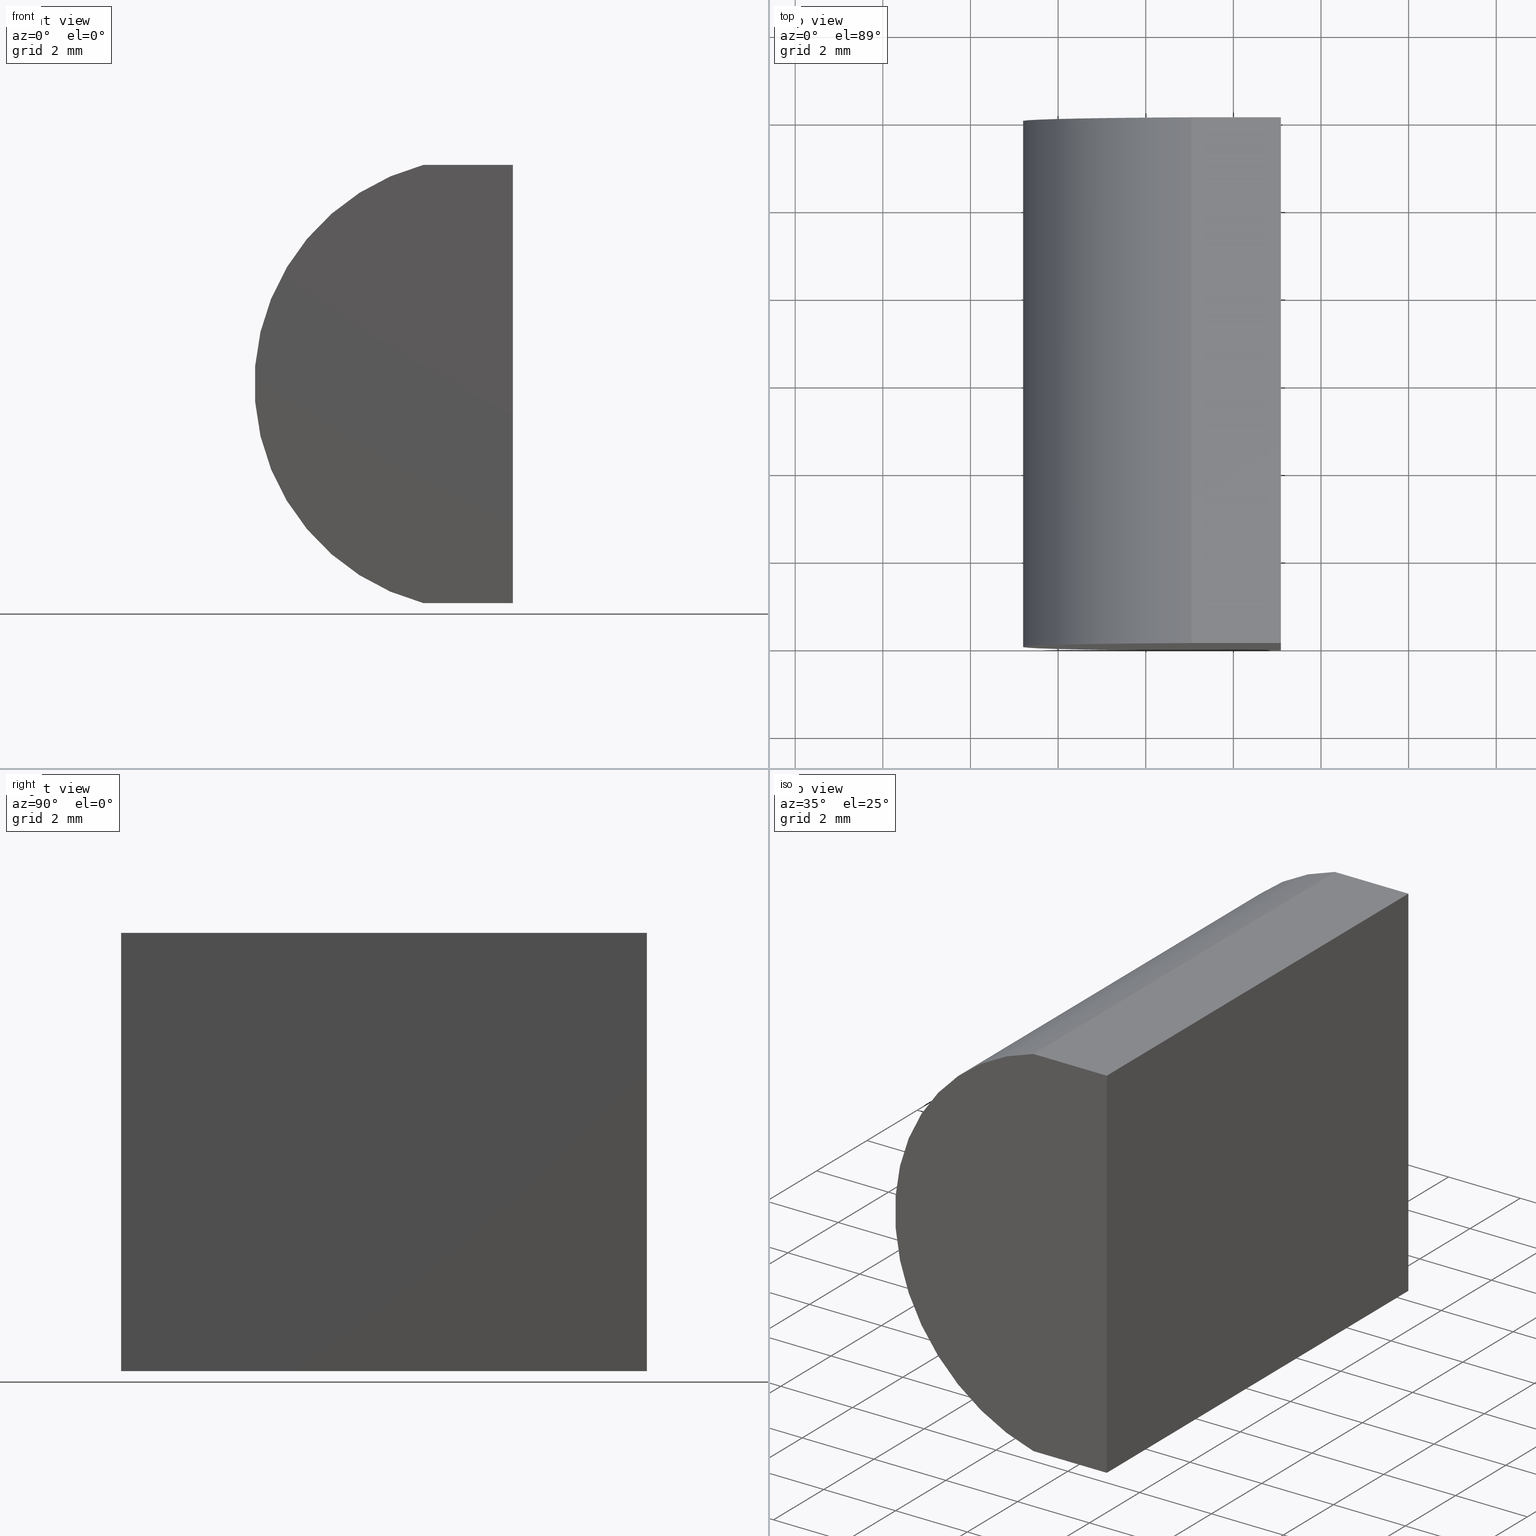
[diagram: canonical four-view strip — front | top / right | iso, engineering-drawing reading convention]
A machine part, canonical four-view strip (front | top / right | iso — engineering-drawing reading convention). The complete STEP part file that produces these views, byte-faithful:
ISO-10303-21;
HEADER;
FILE_DESCRIPTION (( 'STEP AP214' ),
    '1' );
FILE_NAME ('155011.STEP',
    '2019-06-17T01:31:40',
    ( 'user' ),
    ( '΢���й�' ),
    'SwSTEP 2.0',
    'SolidWorks 2016',
    '' );
FILE_SCHEMA (( 'AUTOMOTIVE_DESIGN' ));
ENDSEC;

DATA;
#1 = SURFACE_SIDE_STYLE ('',( #177 ) ) ;
#2 = ORIENTED_EDGE ( 'NONE', *, *, #134, .F. ) ;
#3 = APPLICATION_CONTEXT ( 'automotive_design' ) ;
#4 = APPLICATION_PROTOCOL_DEFINITION ( 'draft international standard', 'automotive_design', 1998, #3 ) ;
#5 = EDGE_CURVE ( 'NONE', #199, #42, #48, .T. ) ;
#6 = FILL_AREA_STYLE_COLOUR ( '', #141 ) ;
#7 = PLANE ( 'NONE',  #161 ) ;
#8 = CARTESIAN_POINT ( 'NONE',  ( 3.040327914802600800, 0.0000000000000000000, -5.000000000000000000 ) ) ;
#9 = SHAPE_DEFINITION_REPRESENTATION ( #155, #105 ) ;
#10 = VECTOR ( 'NONE', #74, 1000.000000000000000 ) ;
#11 = CIRCLE ( 'NONE', #96, 5.169999999999999000 ) ;
#12 = SURFACE_SIDE_STYLE ('',( #19 ) ) ;
#13 = SURFACE_STYLE_USAGE ( .BOTH. , #12 ) ;
#14 =( NAMED_UNIT ( * ) PLANE_ANGLE_UNIT ( ) SI_UNIT ( $, .RADIAN. ) );
#15 = DIRECTION ( 'NONE',  ( -0.0000000000000000000, -1.000000000000000000, -0.0000000000000000000 ) ) ;
#16 =( NAMED_UNIT ( * ) SI_UNIT ( $, .STERADIAN. ) SOLID_ANGLE_UNIT ( ) );
#17 = UNCERTAINTY_MEASURE_WITH_UNIT (LENGTH_MEASURE( 1.000000000000000100E-005 ), #153, 'distance_accuracy_value', 'NONE');
#18 = DIRECTION ( 'NONE',  ( 8.483268030131251300E-016, -0.0000000000000000000, 1.000000000000000000 ) ) ;
#19 = SURFACE_STYLE_FILL_AREA ( #127 ) ;
#20 = DIRECTION ( 'NONE',  ( 1.000000000000000000, 0.0000000000000000000, 0.0000000000000000000 ) ) ;
#21 = DIRECTION ( 'NONE',  ( -0.0000000000000000000, -1.000000000000000000, -0.0000000000000000000 ) ) ;
#22 =( NAMED_UNIT ( * ) SI_UNIT ( $, .STERADIAN. ) SOLID_ANGLE_UNIT ( ) );
#23 = AXIS2_PLACEMENT_3D ( 'NONE', #67, #70, #56 ) ;
#24 = ADVANCED_FACE ( 'NONE', ( #157 ), #32, .F. ) ;
#25 =( NAMED_UNIT ( * ) PLANE_ANGLE_UNIT ( ) SI_UNIT ( $, .RADIAN. ) );
#26 = CARTESIAN_POINT ( 'NONE',  ( 4.355204334851265500, 0.0000000000000000000, 4.286263797015675000E-017 ) ) ;
#27 = ORIENTED_EDGE ( 'NONE', *, *, #165, .F. ) ;
#28 = LINE ( 'NONE', #71, #160 ) ;
#29 = MECHANICAL_DESIGN_GEOMETRIC_PRESENTATION_REPRESENTATION (  '', ( #54 ), #168 ) ;
#30 = EDGE_LOOP ( 'NONE', ( #27, #47, #85, #2 ) ) ;
#31 =( GEOMETRIC_REPRESENTATION_CONTEXT ( 3 ) GLOBAL_UNCERTAINTY_ASSIGNED_CONTEXT ( ( #17 ) ) GLOBAL_UNIT_ASSIGNED_CONTEXT ( ( #153, #25, #125 ) ) REPRESENTATION_CONTEXT ( 'NONE', 'WORKASPACE' ) );
#32 = PLANE ( 'NONE',  #77 ) ;
#33 = ORIENTED_EDGE ( 'NONE', *, *, #107, .F. ) ;
#34 = CARTESIAN_POINT ( 'NONE',  ( 3.040327914802600800, 0.0000000000000000000, -5.000000000000000000 ) ) ;
#35 = FACE_OUTER_BOUND ( 'NONE', #188, .T. ) ;
#36 = CARTESIAN_POINT ( 'NONE',  ( 3.040327914802600800, 12.00000000000000000, -5.000000000000000000 ) ) ;
#37 = VERTEX_POINT ( 'NONE', #164 ) ;
#38 = DIRECTION ( 'NONE',  ( 0.0000000000000000000, 0.0000000000000000000, -1.000000000000000000 ) ) ;
#39 = LINE ( 'NONE', #36, #144 ) ;
#40 = CARTESIAN_POINT ( 'NONE',  ( 4.355204334851265500, 12.00000000000000000, 4.286263797015675000E-017 ) ) ;
#41 = DIRECTION ( 'NONE',  ( 0.0000000000000000000, 1.000000000000000000, 0.0000000000000000000 ) ) ;
#42 = VERTEX_POINT ( 'NONE', #169 ) ;
#43 = FACE_OUTER_BOUND ( 'NONE', #64, .T. ) ;
#44 = AXIS2_PLACEMENT_3D ( 'NONE', #40, #201, #38 ) ;
#45 = PRESENTATION_STYLE_ASSIGNMENT (( #13 ) ) ;
#46 = PRODUCT_DEFINITION_CONTEXT ( 'detailed design', #68, 'design' ) ;
#47 = ORIENTED_EDGE ( 'NONE', *, *, #182, .F. ) ;
#48 = LINE ( 'NONE', #189, #132 ) ;
#49 = DIRECTION ( 'NONE',  ( -0.0000000000000000000, -1.000000000000000000, -0.0000000000000000000 ) ) ;
#50 = CARTESIAN_POINT ( 'NONE',  ( 3.040327914802600300, 12.00000000000000000, 5.000000000000000000 ) ) ;
#51 = DIRECTION ( 'NONE',  ( 1.000000000000000000, 0.0000000000000000000, 0.0000000000000000000 ) ) ;
#52 = DIRECTION ( 'NONE',  ( -0.0000000000000000000, -1.000000000000000000, -0.0000000000000000000 ) ) ;
#53 = VERTEX_POINT ( 'NONE', #87 ) ;
#54 = STYLED_ITEM ( 'NONE', ( #45 ), #105 ) ;
#55 = CARTESIAN_POINT ( 'NONE',  ( 5.085204334851267700, 12.00000000000000000, 5.000000000000000000 ) ) ;
#56 = DIRECTION ( 'NONE',  ( 1.000000000000000000, 0.0000000000000000000, 0.0000000000000000000 ) ) ;
#57 = APPLICATION_PROTOCOL_DEFINITION ( 'draft international standard', 'automotive_design', 1998, #68 ) ;
#58 = LINE ( 'NONE', #101, #128 ) ;
#59 = PRESENTATION_LAYER_ASSIGNMENT (  '', '', ( #54 ) ) ;
#60 = EDGE_LOOP ( 'NONE', ( #138, #79, #170, #108 ) ) ;
#61 =( GEOMETRIC_REPRESENTATION_CONTEXT ( 3 ) GLOBAL_UNCERTAINTY_ASSIGNED_CONTEXT ( ( #183 ) ) GLOBAL_UNIT_ASSIGNED_CONTEXT ( ( #124, #14, #16 ) ) REPRESENTATION_CONTEXT ( 'NONE', 'WORKASPACE' ) );
#62 = PRODUCT_CONTEXT ( 'NONE', #3, 'mechanical' ) ;
#63 = PRODUCT_DEFINITION_FORMATION_WITH_SPECIFIED_SOURCE ( '�κ�', '', #117, .NOT_KNOWN. ) ;
#64 = EDGE_LOOP ( 'NONE', ( #163, #126, #145, #119 ) ) ;
#65 = DIRECTION ( 'NONE',  ( -1.000000000000000000, -0.0000000000000000000, 8.483268030131251300E-016 ) ) ;
#66 = ORIENTED_EDGE ( 'NONE', *, *, #165, .T. ) ;
#67 = CARTESIAN_POINT ( 'NONE',  ( 0.0000000000000000000, 0.0000000000000000000, 0.0000000000000000000 ) ) ;
#68 = APPLICATION_CONTEXT ( 'automotive_design' ) ;
#69 = ORIENTED_EDGE ( 'NONE', *, *, #154, .T. ) ;
#70 = DIRECTION ( 'NONE',  ( 0.0000000000000000000, 0.0000000000000000000, 1.000000000000000000 ) ) ;
#71 = CARTESIAN_POINT ( 'NONE',  ( 5.085204334851264100, 0.0000000000000000000, -5.000000000000001800 ) ) ;
#72 = ADVANCED_FACE ( 'NONE', ( #35 ), #171, .F. ) ;
#73 = CARTESIAN_POINT ( 'NONE',  ( 5.085204334851267700, 12.00000000000000000, 5.000000000000000000 ) ) ;
#74 = DIRECTION ( 'NONE',  ( -1.000000000000000000, -0.0000000000000000000, 8.483268030131251300E-016 ) ) ;
#75 = EDGE_CURVE ( 'NONE', #93, #199, #11, .T. ) ;
#76 = CLOSED_SHELL ( 'NONE', ( #140, #187, #72, #24, #111, #90 ) ) ;
#77 = AXIS2_PLACEMENT_3D ( 'NONE', #200, #18, #162 ) ;
#78 = VECTOR ( 'NONE', #20, 1000.000000000000000 ) ;
#79 = ORIENTED_EDGE ( 'NONE', *, *, #154, .F. ) ;
#80 = DIRECTION ( 'NONE',  ( 0.0000000000000000000, 1.000000000000000000, 0.0000000000000000000 ) ) ;
#81 = VECTOR ( 'NONE', #51, 1000.000000000000000 ) ;
#82 = DIRECTION ( 'NONE',  ( 0.0000000000000000000, -0.0000000000000000000, 1.000000000000000000 ) ) ;
#83 = PLANE ( 'NONE',  #198 ) ;
#84 = DIRECTION ( 'NONE',  ( -3.469446951953613700E-016, -0.0000000000000000000, -1.000000000000000000 ) ) ;
#85 = ORIENTED_EDGE ( 'NONE', *, *, #116, .F. ) ;
#86 = CIRCLE ( 'NONE', #99, 5.169999999999999000 ) ;
#87 = CARTESIAN_POINT ( 'NONE',  ( 5.085204334851264100, 0.0000000000000000000, -5.000000000000001800 ) ) ;
#88 = CARTESIAN_POINT ( 'NONE',  ( 4.355204334851265500, 12.00000000000000000, 4.286263797015675000E-017 ) ) ;
#89 = EDGE_LOOP ( 'NONE', ( #147, #174, #33, #131 ) ) ;
#90 = ADVANCED_FACE ( 'NONE', ( #112 ), #118, .F. ) ;
#91 = DIRECTION ( 'NONE',  ( 0.0000000000000000000, 0.0000000000000000000, -1.000000000000000000 ) ) ;
#92 = DIRECTION ( 'NONE',  ( -3.469446951953613700E-016, -0.0000000000000000000, -1.000000000000000000 ) ) ;
#93 = VERTEX_POINT ( 'NONE', #159 ) ;
#94 = ORIENTED_EDGE ( 'NONE', *, *, #75, .F. ) ;
#95 = VECTOR ( 'NONE', #92, 1000.000000000000000 ) ;
#96 = AXIS2_PLACEMENT_3D ( 'NONE', #109, #103, #102 ) ;
#97 = CARTESIAN_POINT ( 'NONE',  ( 3.040327914802600300, 0.0000000000000000000, 5.000000000000000000 ) ) ;
#98 = DIRECTION ( 'NONE',  ( 0.0000000000000000000, -0.0000000000000000000, 1.000000000000000000 ) ) ;
#99 = AXIS2_PLACEMENT_3D ( 'NONE', #26, #41, #143 ) ;
#100 = DIRECTION ( 'NONE',  ( 0.0000000000000000000, 1.000000000000000000, 0.0000000000000000000 ) ) ;
#101 = CARTESIAN_POINT ( 'NONE',  ( 3.040327914802600800, 12.00000000000000000, -5.000000000000000000 ) ) ;
#102 = DIRECTION ( 'NONE',  ( 0.0000000000000000000, 0.0000000000000000000, 1.000000000000000000 ) ) ;
#103 = DIRECTION ( 'NONE',  ( 0.0000000000000000000, 1.000000000000000000, 0.0000000000000000000 ) ) ;
#104 = LINE ( 'NONE', #55, #196 ) ;
#105 = ADVANCED_BREP_SHAPE_REPRESENTATION ( '155011', ( #129, #23 ), #31 ) ;
#106 = CARTESIAN_POINT ( 'NONE',  ( 4.355204334851265500, 0.0000000000000000000, 4.286263797015675000E-017 ) ) ;
#107 = EDGE_CURVE ( 'NONE', #37, #93, #58, .T. ) ;
#108 = ORIENTED_EDGE ( 'NONE', *, *, #5, .T. ) ;
#109 = CARTESIAN_POINT ( 'NONE',  ( 4.355204334851265500, 12.00000000000000000, 4.286263797015675000E-017 ) ) ;
#110 = CARTESIAN_POINT ( 'NONE',  ( 3.040327914802600300, 12.00000000000000000, 5.000000000000000000 ) ) ;
#111 = ADVANCED_FACE ( 'NONE', ( #43 ), #83, .T. ) ;
#112 = FACE_OUTER_BOUND ( 'NONE', #30, .T. ) ;
#113 = AXIS2_PLACEMENT_3D ( 'NONE', #184, #186, #173 ) ;
#114 = ORIENTED_EDGE ( 'NONE', *, *, #137, .T. ) ;
#115 = FACE_OUTER_BOUND ( 'NONE', #193, .T. ) ;
#116 = EDGE_CURVE ( 'NONE', #197, #53, #28, .T. ) ;
#117 = PRODUCT ( '155011', '155011', '', ( #62 ) ) ;
#118 = PLANE ( 'NONE',  #191 ) ;
#119 = ORIENTED_EDGE ( 'NONE', *, *, #107, .T. ) ;
#120 = LINE ( 'NONE', #204, #172 ) ;
#121 = ORIENTED_EDGE ( 'NONE', *, *, #5, .F. ) ;
#122 = PRESENTATION_STYLE_ASSIGNMENT (( #192 ) ) ;
#123 = LINE ( 'NONE', #195, #95 ) ;
#124 =( LENGTH_UNIT ( ) NAMED_UNIT ( * ) SI_UNIT ( .MILLI., .METRE. ) );
#125 =( NAMED_UNIT ( * ) SI_UNIT ( $, .STERADIAN. ) SOLID_ANGLE_UNIT ( ) );
#126 = ORIENTED_EDGE ( 'NONE', *, *, #146, .T. ) ;
#127 = FILL_AREA_STYLE ('',( #166 ) ) ;
#128 = VECTOR ( 'NONE', #65, 1000.000000000000000 ) ;
#129 = MANIFOLD_SOLID_BREP ( '͹̨-����1', #76 ) ;
#130 = EDGE_CURVE ( 'NONE', #37, #53, #120, .T. ) ;
#131 = ORIENTED_EDGE ( 'NONE', *, *, #130, .T. ) ;
#132 = VECTOR ( 'NONE', #15, 1000.000000000000000 ) ;
#133 = LINE ( 'NONE', #8, #10 ) ;
#134 = EDGE_CURVE ( 'NONE', #42, #197, #190, .T. ) ;
#135 =( NAMED_UNIT ( * ) PLANE_ANGLE_UNIT ( ) SI_UNIT ( $, .RADIAN. ) );
#136 = VERTEX_POINT ( 'NONE', #34 ) ;
#137 = EDGE_CURVE ( 'NONE', #93, #136, #39, .T. ) ;
#138 = ORIENTED_EDGE ( 'NONE', *, *, #134, .T. ) ;
#139 = FACE_OUTER_BOUND ( 'NONE', #60, .T. ) ;
#140 = ADVANCED_FACE ( 'NONE', ( #115 ), #185, .T. ) ;
#141 = COLOUR_RGB ( '',1.000000000000000000, 1.000000000000000000, 1.000000000000000000 ) ;
#142 = PRODUCT_DEFINITION ( 'δ֪', '', #63, #46 ) ;
#143 = DIRECTION ( 'NONE',  ( 0.0000000000000000000, 0.0000000000000000000, 1.000000000000000000 ) ) ;
#144 = VECTOR ( 'NONE', #49, 1000.000000000000000 ) ;
#145 = ORIENTED_EDGE ( 'NONE', *, *, #158, .T. ) ;
#146 = EDGE_CURVE ( 'NONE', #199, #203, #152, .T. ) ;
#147 = ORIENTED_EDGE ( 'NONE', *, *, #182, .T. ) ;
#148 = STYLED_ITEM ( 'NONE', ( #122 ), #129 ) ;
#149 = UNCERTAINTY_MEASURE_WITH_UNIT (LENGTH_MEASURE( 1.000000000000000100E-005 ), #176, 'distance_accuracy_value', 'NONE');
#150 = PRESENTATION_LAYER_ASSIGNMENT (  '', '', ( #148 ) ) ;
#151 = ORIENTED_EDGE ( 'NONE', *, *, #130, .F. ) ;
#152 = LINE ( 'NONE', #50, #81 ) ;
#153 =( LENGTH_UNIT ( ) NAMED_UNIT ( * ) SI_UNIT ( .MILLI., .METRE. ) );
#154 = EDGE_CURVE ( 'NONE', #203, #197, #104, .T. ) ;
#155 = PRODUCT_DEFINITION_SHAPE ( 'NONE', 'NONE',  #142 ) ;
#156 = MECHANICAL_DESIGN_GEOMETRIC_PRESENTATION_REPRESENTATION (  '', ( #148 ), #61 ) ;
#157 = FACE_OUTER_BOUND ( 'NONE', #89, .T. ) ;
#158 = EDGE_CURVE ( 'NONE', #203, #37, #123, .T. ) ;
#159 = CARTESIAN_POINT ( 'NONE',  ( 3.040327914802600800, 12.00000000000000000, -5.000000000000000000 ) ) ;
#160 = VECTOR ( 'NONE', #84, 1000.000000000000000 ) ;
#161 = AXIS2_PLACEMENT_3D ( 'NONE', #110, #91, #178 ) ;
#162 = DIRECTION ( 'NONE',  ( 1.000000000000000000, 0.0000000000000000000, -8.483268030131251300E-016 ) ) ;
#163 = ORIENTED_EDGE ( 'NONE', *, *, #75, .T. ) ;
#164 = CARTESIAN_POINT ( 'NONE',  ( 5.085204334851264100, 12.00000000000000000, -5.000000000000001800 ) ) ;
#165 = EDGE_CURVE ( 'NONE', #136, #42, #86, .T. ) ;
#166 = FILL_AREA_STYLE_COLOUR ( '', #180 ) ;
#167 = ORIENTED_EDGE ( 'NONE', *, *, #116, .T. ) ;
#168 =( GEOMETRIC_REPRESENTATION_CONTEXT ( 3 ) GLOBAL_UNCERTAINTY_ASSIGNED_CONTEXT ( ( #149 ) ) GLOBAL_UNIT_ASSIGNED_CONTEXT ( ( #176, #135, #22 ) ) REPRESENTATION_CONTEXT ( 'NONE', 'WORKASPACE' ) );
#169 = CARTESIAN_POINT ( 'NONE',  ( 3.040327914802600300, 0.0000000000000000000, 5.000000000000000000 ) ) ;
#170 = ORIENTED_EDGE ( 'NONE', *, *, #146, .F. ) ;
#171 = PLANE ( 'NONE',  #113 ) ;
#172 = VECTOR ( 'NONE', #21, 1000.000000000000000 ) ;
#173 = DIRECTION ( 'NONE',  ( 3.469446951953613700E-016, 0.0000000000000000000, 1.000000000000000000 ) ) ;
#174 = ORIENTED_EDGE ( 'NONE', *, *, #137, .F. ) ;
#175 = FILL_AREA_STYLE ('',( #6 ) ) ;
#176 =( LENGTH_UNIT ( ) NAMED_UNIT ( * ) SI_UNIT ( .MILLI., .METRE. ) );
#177 = SURFACE_STYLE_FILL_AREA ( #175 ) ;
#178 = DIRECTION ( 'NONE',  ( -1.000000000000000000, 0.0000000000000000000, -0.0000000000000000000 ) ) ;
#179 = CARTESIAN_POINT ( 'NONE',  ( 5.085204334851267700, 0.0000000000000000000, 5.000000000000000000 ) ) ;
#180 = COLOUR_RGB ( '',1.000000000000000000, 1.000000000000000000, 1.000000000000000000 ) ;
#181 = ORIENTED_EDGE ( 'NONE', *, *, #158, .F. ) ;
#182 = EDGE_CURVE ( 'NONE', #53, #136, #133, .T. ) ;
#183 = UNCERTAINTY_MEASURE_WITH_UNIT (LENGTH_MEASURE( 1.000000000000000100E-005 ), #124, 'distance_accuracy_value', 'NONE');
#184 = CARTESIAN_POINT ( 'NONE',  ( 5.085204334851264100, 12.00000000000000000, -5.000000000000001800 ) ) ;
#185 = CYLINDRICAL_SURFACE ( 'NONE', #44, 5.169999999999999000 ) ;
#186 = DIRECTION ( 'NONE',  ( -1.000000000000000000, 0.0000000000000000000, 3.469446951953613700E-016 ) ) ;
#187 = ADVANCED_FACE ( 'NONE', ( #139 ), #7, .F. ) ;
#188 = EDGE_LOOP ( 'NONE', ( #167, #151, #181, #69 ) ) ;
#189 = CARTESIAN_POINT ( 'NONE',  ( 3.040327914802600300, 12.00000000000000000, 5.000000000000000000 ) ) ;
#190 = LINE ( 'NONE', #97, #78 ) ;
#191 = AXIS2_PLACEMENT_3D ( 'NONE', #106, #100, #98 ) ;
#192 = SURFACE_STYLE_USAGE ( .BOTH. , #1 ) ;
#193 = EDGE_LOOP ( 'NONE', ( #66, #121, #94, #114 ) ) ;
#194 = CARTESIAN_POINT ( 'NONE',  ( 3.040327914802600300, 12.00000000000000000, 5.000000000000000000 ) ) ;
#195 = CARTESIAN_POINT ( 'NONE',  ( 5.085204334851264100, 12.00000000000000000, -5.000000000000001800 ) ) ;
#196 = VECTOR ( 'NONE', #52, 1000.000000000000000 ) ;
#197 = VERTEX_POINT ( 'NONE', #179 ) ;
#198 = AXIS2_PLACEMENT_3D ( 'NONE', #88, #80, #82 ) ;
#199 = VERTEX_POINT ( 'NONE', #194 ) ;
#200 = CARTESIAN_POINT ( 'NONE',  ( 3.040327914802600800, 12.00000000000000000, -5.000000000000000000 ) ) ;
#201 = DIRECTION ( 'NONE',  ( -0.0000000000000000000, -1.000000000000000000, -0.0000000000000000000 ) ) ;
#202 = PRODUCT_RELATED_PRODUCT_CATEGORY ( 'part', '', ( #117 ) ) ;
#203 = VERTEX_POINT ( 'NONE', #73 ) ;
#204 = CARTESIAN_POINT ( 'NONE',  ( 5.085204334851264100, 12.00000000000000000, -5.000000000000001800 ) ) ;
ENDSEC;
END-ISO-10303-21;
